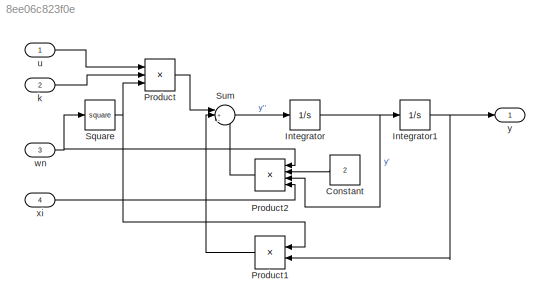
MODEL slx_8ee06c823f0e
KIND model
CONFIG AbsTol = auto
CONFIG EnableMultiTasking = off
CONFIG FixedStep = auto
CONFIG MaxStep = auto
CONFIG MinStep = auto
CONFIG RelTol = 1e-3
CONFIG SampleTimeConstraint = Unconstrained
CONFIG Solver = VariableStepAuto
CONFIG SolverName = VariableStepAuto
CONFIG StartTime = 0.0
CONFIG StopTime = 10.0
BLOCK [Constant] Constant
  Value = 2
BLOCK [Integrator] Integrator
  Ports = [1, 1]
BLOCK [Integrator] Integrator1
  Ports = [1, 1]
BLOCK [Product] Product
  InputSameDT = off
  Inputs = 3
  OutDataTypeStr = Inherit: Inherit via internal rule
  Ports = [3, 1]
  RndMeth = Floor
  SaturateOnIntegerOverflow = off
BLOCK [Product] Product1
  InputSameDT = off
  OutDataTypeStr = Inherit: Inherit via internal rule
  Ports = [2, 1]
  RndMeth = Floor
  SaturateOnIntegerOverflow = off
BLOCK [Product] Product2
  InputSameDT = off
  Inputs = 4
  OutDataTypeStr = Inherit: Inherit via internal rule
  Ports = [4, 1]
  RndMeth = Floor
  SaturateOnIntegerOverflow = off
BLOCK [Math] Square
  Operator = square
  Ports = [1, 1]
BLOCK [Sum] Sum
  IconShape = round
  InputSameDT = off
  Inputs = |+--
  OutDataTypeStr = Inherit: Inherit via internal rule
  Ports = [3, 1]
  SaturateOnIntegerOverflow = off
BLOCK [Inport] k
  IconDisplay = Port number
  Port = 2
BLOCK [Inport] u 
  IconDisplay = Port number
BLOCK [Inport] wn
  IconDisplay = Port number
  Port = 3
BLOCK [Inport] xi
  IconDisplay = Port number
  Port = 4
BLOCK [Outport] y
  IconDisplay = Port number
LINE Constant:1 -> Product2:2
NET Integrator1:1 -> Product1:2, y:1
NET Integrator:1 -> Integrator1:1, Product2:3
LINE Product1:1 -> Sum:2
LINE Product2:1 -> Sum:3
LINE Product:1 -> Sum:1
NET Square:1 -> Product1:1, Product:3
LINE Sum:1 -> Integrator:1
LINE k:1 -> Product:2
LINE u :1 -> Product:1
NET wn:1 -> Product2:1, Square:1
LINE xi:1 -> Product2:4
note: NET lines group one-source signal fan-out (src -> all destinations, sorted); 1:1 wires keep LINE
